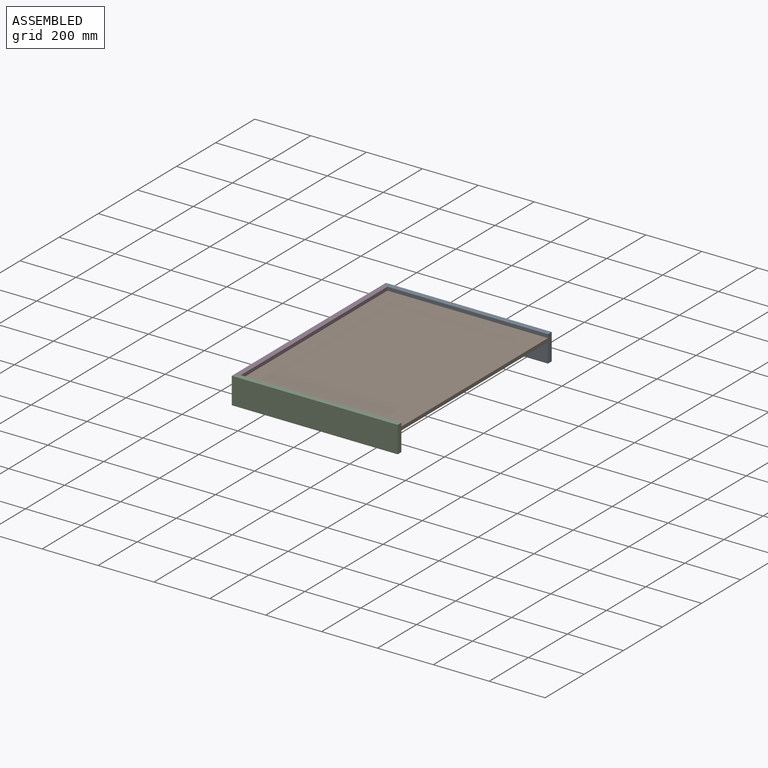
[diagram: assembled view]
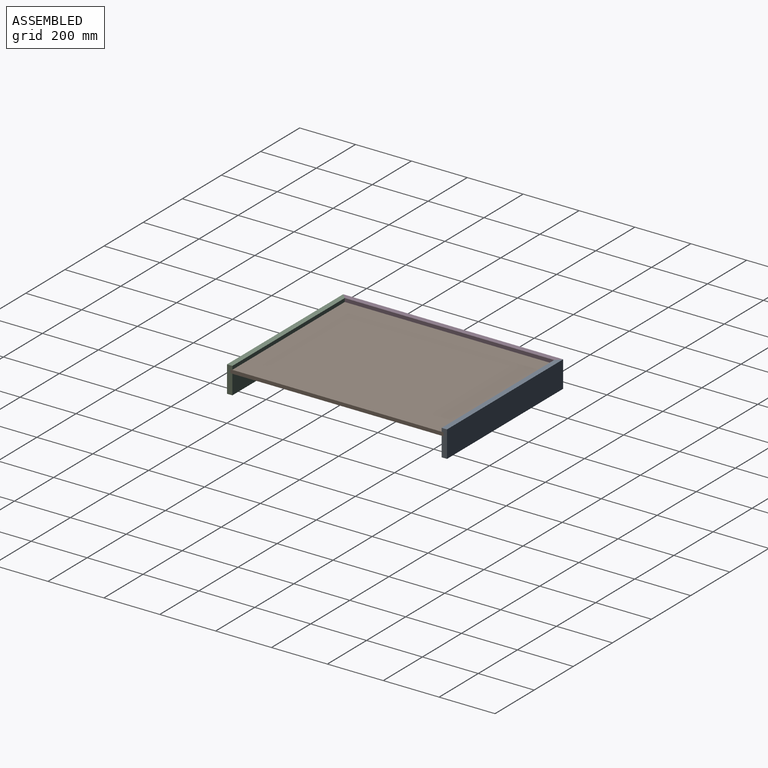
[diagram: assembled view, second angle]
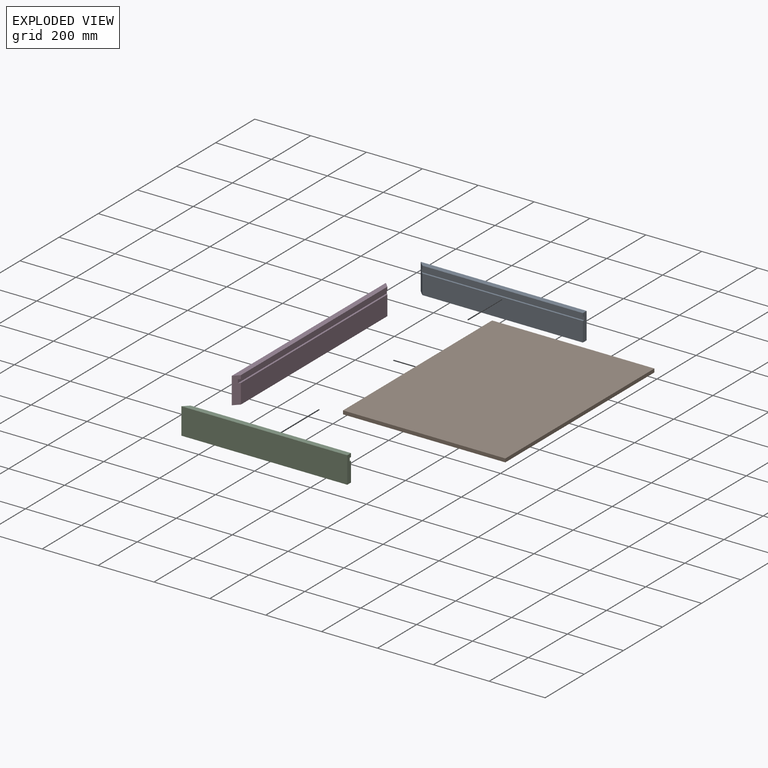
[diagram: exploded view]
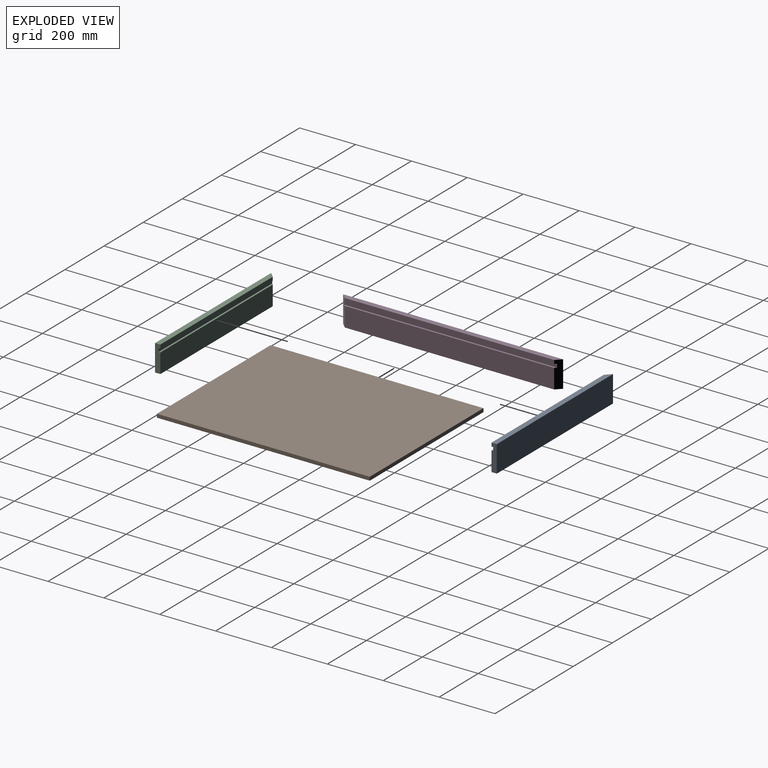
[diagram: exploded view, second angle]
ASSEMBLY  parts=4 mates=3
PART A: 10 faces, bbox 593.7x19.1x95.3 mm
  f0: plane 581.03x6.35mm, normal (0,0,1), area 3669.3mm2, adj f1,f7,f8,f9
  f1: plane 574.68x69.85mm, normal (0,-1,0), area 40141mm2, adj f0,f2,f8,f9
  f2: plane 593.73x19.05mm, normal (0,0,-1), area 11129mm2, adj f1,f3,f8,f9
  f3: plane 593.73x95.25mm, normal (0,1,0), area 56552.3mm2, adj f2,f4,f8,f9
  f4: plane 593.73x19.05mm, normal (0,0,1), area 11129mm2, adj f3,f5,f8,f9
  f5: plane 574.68x12.7mm, normal (0,-1,0), area 7298.4mm2, adj f4,f6,f8,f9
  f6: plane 581.03x6.35mm, normal (0,0,-1), area 3669.3mm2, adj f5,f7,f8,f9
  f7: plane 581.03x12.7mm, normal (0,-1,0), area 7379mm2, adj f0,f6,f8,f9
  f8: plane 95.25x19.05mm, normal (1,0,0), area 1733.9mm2, adj f0,f1,f2,f3,f4,f5,f6,f7
  f9: plane 95.25x19.05mm, normal (-0.71,-0.71,0), area 2452.1mm2, adj f0,f1,f2,f3,f4,f5,f6,f7
PART B: 6 faces, bbox 581x762x12.7 mm
  f0: plane 762x12.7mm, normal (-1,0,0), area 9677.4mm2, adj f1,f3,f4,f5
  f1: plane 581.03x12.7mm, normal (0,-1,0), area 7379mm2, adj f0,f2,f4,f5
  f2: plane 762x12.7mm, normal (1,0,0), area 9677.4mm2, adj f1,f3,f4,f5
  f3: plane 581.03x12.7mm, normal (0,1,0), area 7379mm2, adj f0,f2,f4,f5
  f4: plane 762x581.03mm, normal (0,0,1), area 442741mm2, adj f0,f1,f2,f3
  f5: plane 762x581.03mm, normal (0,0,-1), area 442741mm2, adj f0,f1,f2,f3
PART C: 10 faces, bbox 593.7x19.1x95.3 mm
  f0: plane 593.73x19.05mm, normal (0,0,-1), area 11129mm2, adj f1,f7,f8,f9
  f1: plane 574.68x69.85mm, normal (0,1,0), area 40141mm2, adj f0,f2,f8,f9
  f2: plane 581.03x6.35mm, normal (0,0,1), area 3669.3mm2, adj f1,f3,f8,f9
  f3: plane 581.03x12.7mm, normal (0,1,0), area 7379mm2, adj f2,f4,f8,f9
  f4: plane 581.03x6.35mm, normal (0,0,-1), area 3669.3mm2, adj f3,f5,f8,f9
  f5: plane 574.68x12.7mm, normal (0,1,0), area 7298.4mm2, adj f4,f6,f8,f9
  f6: plane 593.73x19.05mm, normal (0,0,1), area 11129mm2, adj f5,f7,f8,f9
  f7: plane 593.73x95.25mm, normal (0,-1,0), area 56552.3mm2, adj f0,f6,f8,f9
  f8: plane 95.25x19.05mm, normal (1,0,0), area 1733.9mm2, adj f0,f1,f2,f3,f4,f5,f6,f7
  f9: plane 95.25x19.05mm, normal (-0.71,0.71,0), area 2452.1mm2, adj f0,f1,f2,f3,f4,f5,f6,f7
PART D: 10 faces, bbox 19.1x787.4x95.3 mm
  f0: plane 749.3x12.7mm, normal (1,0,0), area 9516.1mm2, adj f1,f7,f8,f9
  f1: plane 787.4x19.05mm, normal (0,0,1), area 14637.1mm2, adj f0,f2,f8,f9
  f2: plane 787.4x95.25mm, normal (-1,0,0), area 74999.9mm2, adj f1,f3,f8,f9
  f3: plane 787.4x19.05mm, normal (0,0,-1), area 14637.1mm2, adj f2,f4,f8,f9
  f4: plane 749.3x69.85mm, normal (1,0,0), area 52338.6mm2, adj f3,f5,f8,f9
  f5: plane 762x6.35mm, normal (0,0,1), area 4798.4mm2, adj f4,f6,f8,f9
  f6: plane 762x12.7mm, normal (1,0,0), area 9677.4mm2, adj f5,f7,f8,f9
  f7: plane 762x6.35mm, normal (0,0,-1), area 4798.4mm2, adj f0,f6,f8,f9
  f8: plane 95.25x19.05mm, normal (0.71,-0.71,0), area 2452.1mm2, adj f0,f1,f2,f3,f4,f5,f6,f7
  f9: plane 95.25x19.05mm, normal (0.71,0.71,0), area 2452.1mm2, adj f0,f1,f2,f3,f4,f5,f6,f7
PLACE A at identity
PLACE B at identity fixed
PLACE C at identity
PLACE D at identity
MATE fastened C.f8 <-> B.f2  axis (1,0,0) through (581.02,0,0)mm
MATE fastened B.f2 <-> A.f8  axis (1,0,0) through (581.02,762,0)mm
MATE fastened C.f6 <-> D.f1  axis (0,0,1) through (6.35,6.35,25.4)mm
